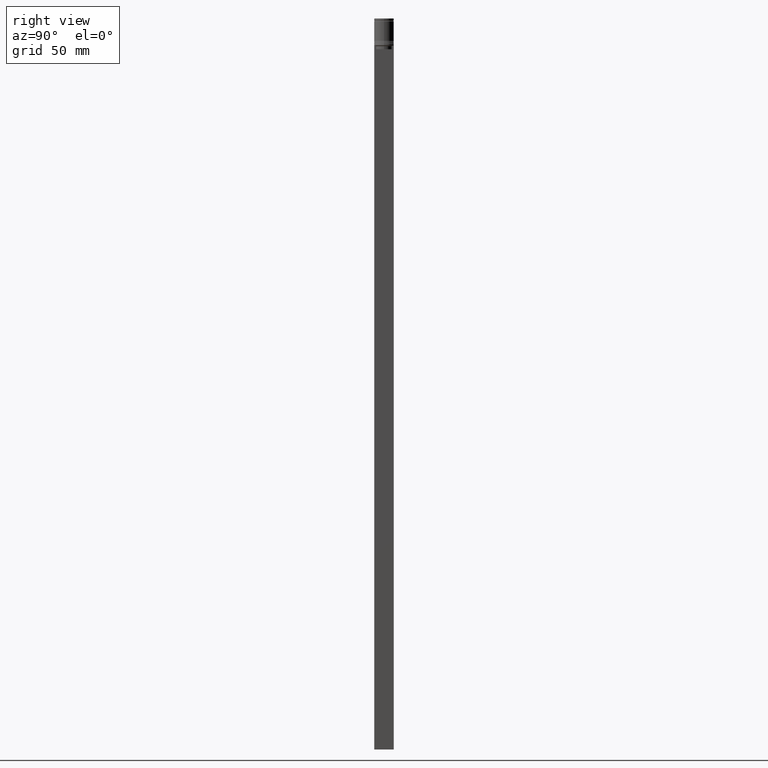
[diagram: clean part render]
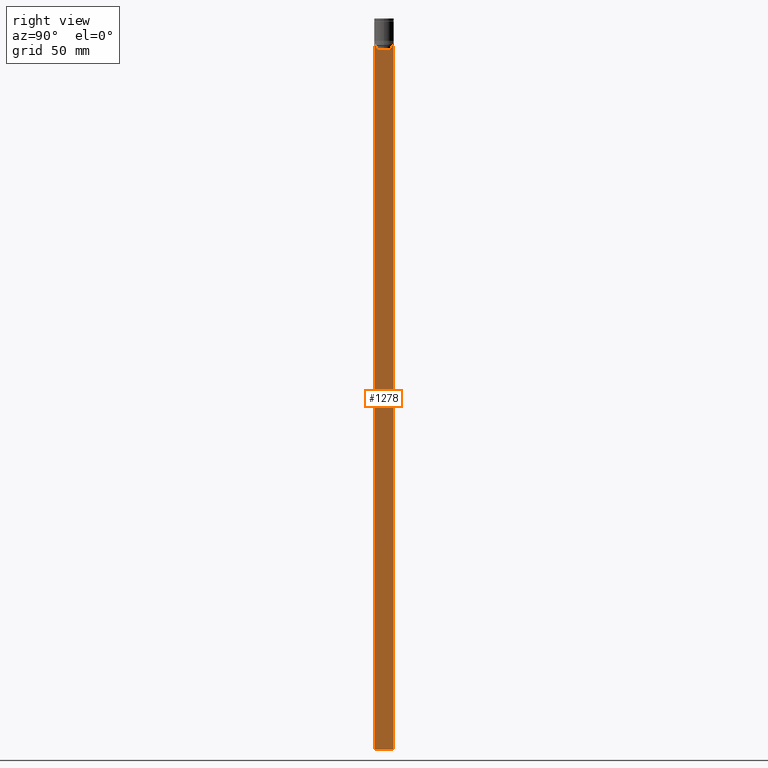
[diagram: same view with one face highlighted and labeled with its STEP entity id]
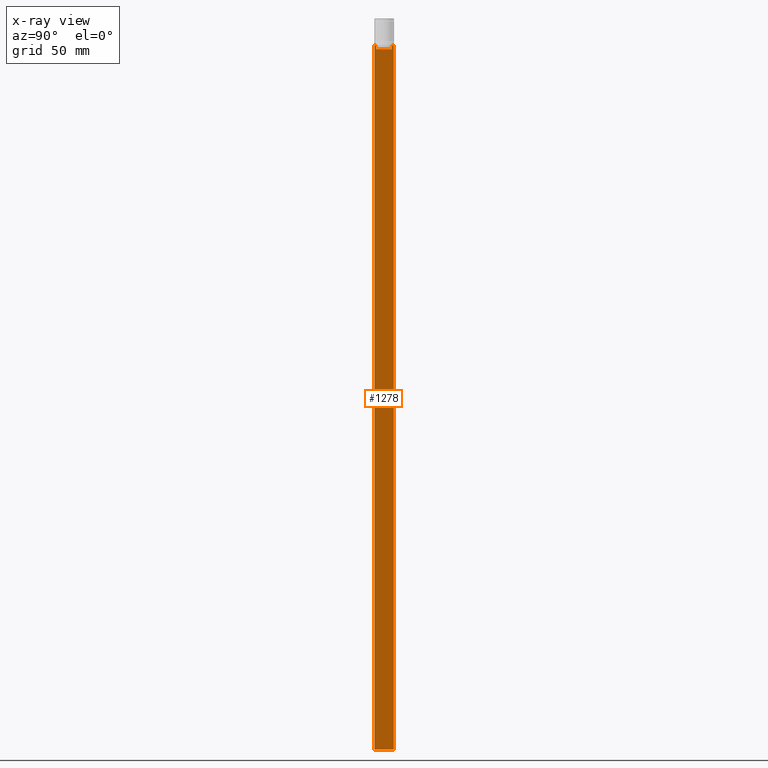
[diagram: x-ray of the same camera — body ghosted, the highlighted face saturated]
A machine part, right view. The second image highlights one B-rep face of the part: STEP entity #1278.
The next image is the same camera in x-ray: the body ghosted, the highlighted face saturated — about 0% of this face is hidden behind the body in this view.
In plain terms, the highlighted planar face has unit normal (-1, 0, 0).
Its self-contained STEP definition (entity closure, byte-faithful):
#9 = VECTOR ( 'NONE', #1344, 1000.000000000000000 ) ;
#19 = DIRECTION ( 'NONE',  ( 0.000000000000000000, 0.000000000000000000, -1.000000000000000000 ) ) ;
#32 = CARTESIAN_POINT ( 'NONE',  ( 0.5000000000000001110, -6.881860213634107382, -22.00000000000000000 ) ) ;
#44 = VERTEX_POINT ( 'NONE', #32 ) ;
#70 = VECTOR ( 'NONE', #19, 1000.000000000000000 ) ;
#93 = CARTESIAN_POINT ( 'NONE',  ( 0.5000000000000001110, 7.999999999999996447, -22.00000000000000000 ) ) ;
#97 = CARTESIAN_POINT ( 'NONE',  ( 0.5000000000000001110, -6.380438856379714530, 0.000000000000000000 ) ) ;
#104 = EDGE_LOOP ( 'NONE', ( #1546, #1865, #555, #547, #1286, #1328, #154, #459, #527, #251, #1694, #807 ) ) ;
#123 = LINE ( 'NONE', #1919, #710 ) ;
#130 = DIRECTION ( 'NONE',  ( 0.000000000000000000, -1.000000000000000000, 0.000000000000000000 ) ) ;
#154 = ORIENTED_EDGE ( 'NONE', *, *, #1024, .T. ) ;
#166 = VECTOR ( 'NONE', #483, 1000.000000000000000 ) ;
#207 = FACE_OUTER_BOUND ( 'NONE', #104, .T. ) ;
#228 = DIRECTION ( 'NONE',  ( -0.000000000000000000, -0.000000000000000000, 1.000000000000000000 ) ) ;
#251 = ORIENTED_EDGE ( 'NONE', *, *, #916, .T. ) ;
#253 = LINE ( 'NONE', #97, #1050 ) ;
#262 = CARTESIAN_POINT ( 'NONE',  ( 0.5000000000000001110, 6.881860213634107382, -22.00000000000000000 ) ) ;
#318 = DIRECTION ( 'NONE',  ( 0.000000000000000000, -1.000000000000000000, 0.000000000000000000 ) ) ;
#391 = VERTEX_POINT ( 'NONE', #1083 ) ;
#398 = VERTEX_POINT ( 'NONE', #994 ) ;
#450 = LINE ( 'NONE', #1907, #1533 ) ;
#458 = EDGE_CURVE ( 'NONE', #1345, #1540, #1326, .T. ) ;
#459 = ORIENTED_EDGE ( 'NONE', *, *, #1839, .T. ) ;
#483 = DIRECTION ( 'NONE',  ( 0.000000000000000000, -1.000000000000000000, 0.000000000000000000 ) ) ;
#527 = ORIENTED_EDGE ( 'NONE', *, *, #1434, .T. ) ;
#539 = PLANE ( 'NONE',  #612 ) ;
#547 = ORIENTED_EDGE ( 'NONE', *, *, #760, .T. ) ;
#555 = ORIENTED_EDGE ( 'NONE', *, *, #1473, .T. ) ;
#566 = EDGE_CURVE ( 'NONE', #1359, #795, #253, .T. ) ;
#593 = CARTESIAN_POINT ( 'NONE',  ( 0.5000000000000001110, -6.547597841511252348, -22.33335192438651973 ) ) ;
#612 = AXIS2_PLACEMENT_3D ( 'NONE', #1491, #856, #1502 ) ;
#678 = CARTESIAN_POINT ( 'NONE',  ( 0.5000000000000001110, 6.881860213634107382, -22.00000000000000000 ) ) ;
#702 = DIRECTION ( 'NONE',  ( 0.000000000000000000, -1.000000000000000000, 0.000000000000000000 ) ) ;
#709 = CARTESIAN_POINT ( 'NONE',  ( 0.5000000000000001110, -6.881860213634107382, -22.00000000000000000 ) ) ;
#710 = VECTOR ( 'NONE', #318, 1000.000000000000000 ) ;
#724 = CARTESIAN_POINT ( 'NONE',  ( 0.5000000000000001110, -8.000000000000003553, -22.00000000000000000 ) ) ;
#737 = CARTESIAN_POINT ( 'NONE',  ( 0.5000000000000001110, -6.380438856379714530, -24.99999999999999645 ) ) ;
#744 = EDGE_CURVE ( 'NONE', #398, #866, #1757, .T. ) ;
#760 = EDGE_CURVE ( 'NONE', #1571, #1359, #123, .T. ) ;
#795 = VERTEX_POINT ( 'NONE', #1754 ) ;
#807 = ORIENTED_EDGE ( 'NONE', *, *, #1749, .T. ) ;
#839 = LINE ( 'NONE', #1950, #2055 ) ;
#856 = DIRECTION ( 'NONE',  ( -1.000000000000000000, 0.000000000000000000, 0.000000000000000000 ) ) ;
#866 = VERTEX_POINT ( 'NONE', #678 ) ;
#910 = CARTESIAN_POINT ( 'NONE',  ( 0.5000000000000001110, 6.714736947114698040, -22.16668390704818492 ) ) ;
#916 = EDGE_CURVE ( 'NONE', #1266, #1540, #839, .T. ) ;
#950 = VECTOR ( 'NONE', #702, 1000.000000000000000 ) ;
#965 = VERTEX_POINT ( 'NONE', #724 ) ;
#994 = CARTESIAN_POINT ( 'NONE',  ( 0.5000000000000001110, 7.884161337770813738, -22.00000000000000000 ) ) ;
#1005 = CARTESIAN_POINT ( 'NONE',  ( 0.5000000000000001110, 6.380438856379714530, 0.000000000000000000 ) ) ;
#1024 = EDGE_CURVE ( 'NONE', #44, #2069, #1861, .T. ) ;
#1038 = CARTESIAN_POINT ( 'NONE',  ( 0.5000000000000001110, -8.000000000000003553, -22.00000000000000000 ) ) ;
#1050 = VECTOR ( 'NONE', #228, 1000.000000000000000 ) ;
#1075 = CARTESIAN_POINT ( 'NONE',  ( 0.5000000000000001110, -6.714736947306001014, -22.16668390685738643 ) ) ;
#1078 = CARTESIAN_POINT ( 'NONE',  ( 0.5000000000000001110, -8.000000000000003553, -596.0000000000000000 ) ) ;
#1083 = CARTESIAN_POINT ( 'NONE',  ( 0.5000000000000001110, 6.380438856379714530, -22.50000000000000000 ) ) ;
#1109 = CARTESIAN_POINT ( 'NONE',  ( 0.5000000000000001110, -7.884161337770813738, -22.00000000000000000 ) ) ;
#1135 = LINE ( 'NONE', #1303, #1260 ) ;
#1165 = CARTESIAN_POINT ( 'NONE',  ( 0.5000000000000001110, 7.999999999999996447, -5.968780458118602361 ) ) ;
#1198 = DIRECTION ( 'NONE',  ( 0.000000000000000000, -1.000000000000000000, 0.000000000000000000 ) ) ;
#1207 = CARTESIAN_POINT ( 'NONE',  ( 0.5000000000000001110, 6.380438856379714530, -24.99999999999999645 ) ) ;
#1223 = B_SPLINE_CURVE_WITH_KNOTS ( 'NONE', 3,
 ( #2037, #593, #1075, #709 ),
 .UNSPECIFIED., .F., .F.,
 ( 4, 4 ),
 ( 0.02996184199614752158, 0.03067452609193706617 ),
 .UNSPECIFIED. ) ;
#1242 = CARTESIAN_POINT ( 'NONE',  ( 0.5000000000000001110, 6.380438856379714530, -22.50000000000000000 ) ) ;
#1256 = EDGE_CURVE ( 'NONE', #866, #391, #1504, .T. ) ;
#1260 = VECTOR ( 'NONE', #1268, 1000.000000000000000 ) ;
#1266 = VERTEX_POINT ( 'NONE', #1078 ) ;
#1268 = DIRECTION ( 'NONE',  ( 0.000000000000000000, 0.000000000000000000, -1.000000000000000000 ) ) ;
#1278 = ADVANCED_FACE ( 'NONE', ( #207 ), #539, .F. ) ;
#1286 = ORIENTED_EDGE ( 'NONE', *, *, #566, .T. ) ;
#1303 = CARTESIAN_POINT ( 'NONE',  ( 0.5000000000000001110, -8.000000000000003553, -5.968780458118602361 ) ) ;
#1326 = LINE ( 'NONE', #1165, #70 ) ;
#1328 = ORIENTED_EDGE ( 'NONE', *, *, #1614, .T. ) ;
#1339 = CARTESIAN_POINT ( 'NONE',  ( 0.5000000000000001110, -8.000000000000003553, -22.00000000000000000 ) ) ;
#1344 = DIRECTION ( 'NONE',  ( 0.000000000000000000, 0.000000000000000000, -1.000000000000000000 ) ) ;
#1345 = VERTEX_POINT ( 'NONE', #93 ) ;
#1359 = VERTEX_POINT ( 'NONE', #737 ) ;
#1369 = LINE ( 'NONE', #1038, #950 ) ;
#1408 = CARTESIAN_POINT ( 'NONE',  ( 0.5000000000000001110, 7.999999999999996447, -596.0000000000000000 ) ) ;
#1434 = EDGE_CURVE ( 'NONE', #965, #1266, #1135, .T. ) ;
#1473 = EDGE_CURVE ( 'NONE', #391, #1571, #1819, .T. ) ;
#1491 = CARTESIAN_POINT ( 'NONE',  ( 0.5000000000000001110, -8.000000000000003553, -5.968780458118602361 ) ) ;
#1502 = DIRECTION ( 'NONE',  ( 0.000000000000000000, 0.000000000000000000, 1.000000000000000000 ) ) ;
#1504 = B_SPLINE_CURVE_WITH_KNOTS ( 'NONE', 3,
 ( #262, #910, #2040, #1242 ),
 .UNSPECIFIED., .F., .F.,
 ( 4, 4 ),
 ( 0.01172465562756039650, 0.01243276816391824212 ),
 .UNSPECIFIED. ) ;
#1533 = VECTOR ( 'NONE', #130, 1000.000000000000000 ) ;
#1540 = VERTEX_POINT ( 'NONE', #1408 ) ;
#1546 = ORIENTED_EDGE ( 'NONE', *, *, #744, .T. ) ;
#1571 = VERTEX_POINT ( 'NONE', #1207 ) ;
#1614 = EDGE_CURVE ( 'NONE', #795, #44, #1223, .T. ) ;
#1694 = ORIENTED_EDGE ( 'NONE', *, *, #458, .F. ) ;
#1749 = EDGE_CURVE ( 'NONE', #1345, #398, #450, .T. ) ;
#1754 = CARTESIAN_POINT ( 'NONE',  ( 0.5000000000000001110, -6.380438856379714530, -22.50000000000000000 ) ) ;
#1757 = LINE ( 'NONE', #1339, #166 ) ;
#1819 = LINE ( 'NONE', #1005, #9 ) ;
#1839 = EDGE_CURVE ( 'NONE', #2069, #965, #1369, .T. ) ;
#1861 = LINE ( 'NONE', #2008, #1928 ) ;
#1865 = ORIENTED_EDGE ( 'NONE', *, *, #1256, .T. ) ;
#1907 = CARTESIAN_POINT ( 'NONE',  ( 0.5000000000000001110, -8.000000000000003553, -22.00000000000000000 ) ) ;
#1919 = CARTESIAN_POINT ( 'NONE',  ( 0.5000000000000001110, 6.400000000000006573, -24.99999999999999645 ) ) ;
#1928 = VECTOR ( 'NONE', #1198, 1000.000000000000000 ) ;
#1950 = CARTESIAN_POINT ( 'NONE',  ( 0.5000000000000001110, -8.000000000000003553, -596.0000000000000000 ) ) ;
#1959 = DIRECTION ( 'NONE',  ( 0.000000000000000000, 1.000000000000000000, 0.000000000000000000 ) ) ;
#2008 = CARTESIAN_POINT ( 'NONE',  ( 0.5000000000000001110, -8.000000000000003553, -22.00000000000000000 ) ) ;
#2037 = CARTESIAN_POINT ( 'NONE',  ( 0.5000000000000001110, -6.380438856379714530, -22.50000000000000000 ) ) ;
#2040 = CARTESIAN_POINT ( 'NONE',  ( 0.5000000000000001110, 6.547597841304916955, -22.33335192459222185 ) ) ;
#2055 = VECTOR ( 'NONE', #1959, 1000.000000000000000 ) ;
#2069 = VERTEX_POINT ( 'NONE', #1109 ) ;